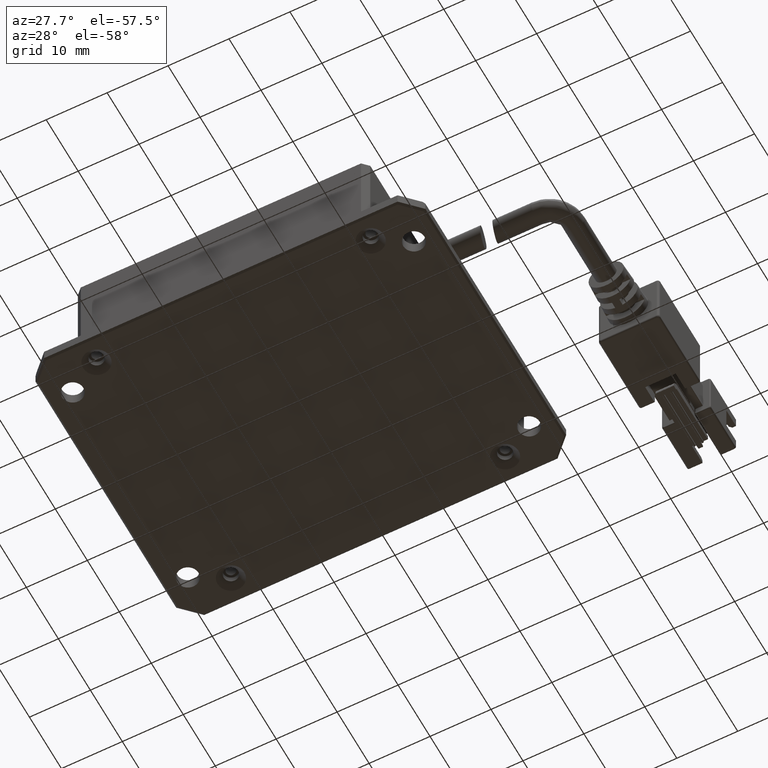
[diagram: clean part render]
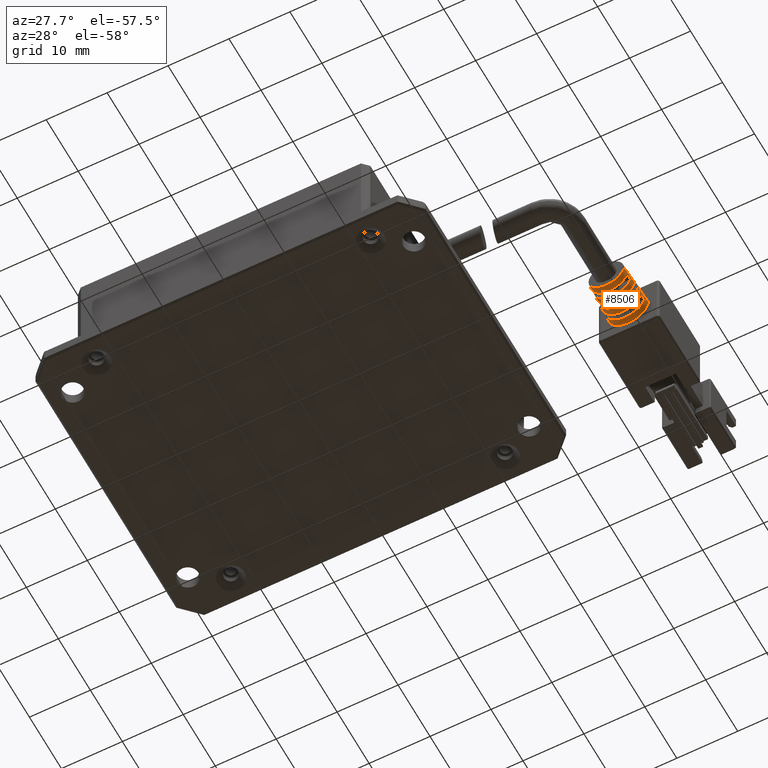
[diagram: same view with one face highlighted and labeled with its STEP entity id]
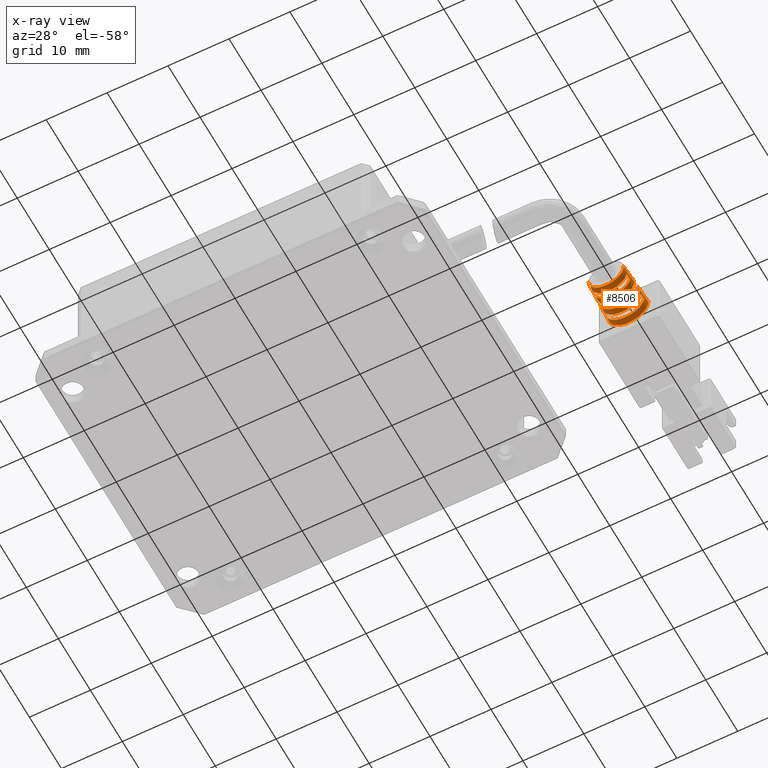
[diagram: x-ray of the same camera — body ghosted, the highlighted face saturated]
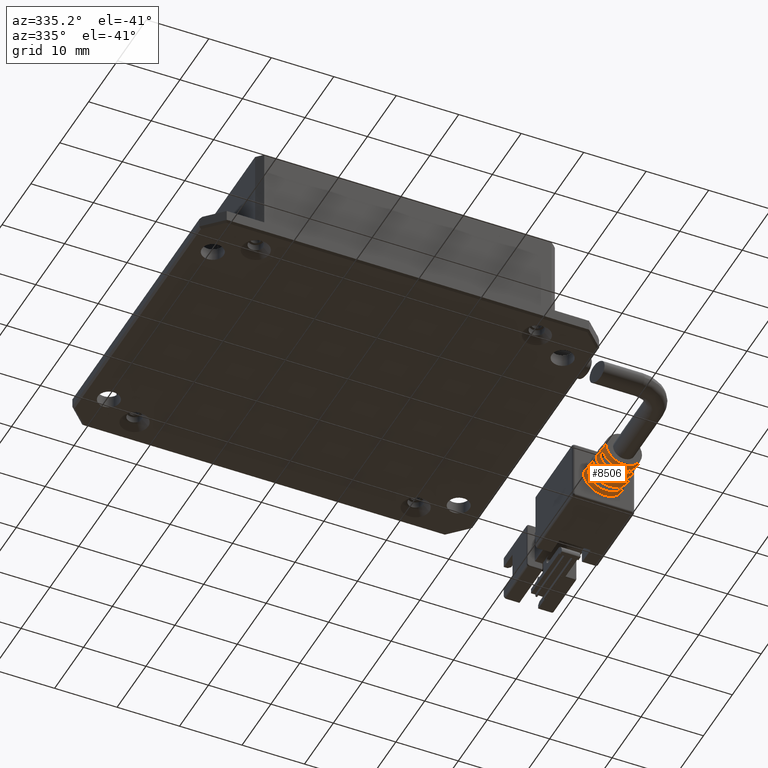
[diagram: same view with one face highlighted and labeled with its STEP entity id]
A machine part, auxiliary view. The second image highlights one B-rep face of the part: STEP entity #8506.
The next image is the same camera in x-ray: the body ghosted, the highlighted face saturated — about 0% of this face is hidden behind the body in this view.
A second angle (auxiliary view) of the same face is appended — the face is thin or edge-on in the first view.
In plain terms, the highlighted conical surface has half-angle 3 deg.
Its self-contained STEP definition (entity closure, byte-faithful):
#3 = DIRECTION ( 'NONE',  ( -0.05233595624279531500, 0.9986295347545816000, -1.094872672590910900E-017 ) ) ;
#78 = CARTESIAN_POINT ( 'NONE',  ( 47.09316533027874400, 6.290950744554031400, 4.999999999983692200 ) ) ;
#244 = CARTESIAN_POINT ( 'NONE',  ( 43.84316533029164700, 13.29095074433166000, 4.999999999983691300 ) ) ;
#272 = VERTEX_POINT ( 'NONE', #12285 ) ;
#336 = AXIS2_PLACEMENT_3D ( 'NONE', #15369, #17243, #14046 ) ;
#380 = DIRECTION ( 'NONE',  ( 3.081487911019577400E-033, -1.000000000000000000, 2.672764710092188000E-049 ) ) ;
#588 = ORIENTED_EDGE ( 'NONE', *, *, #5494, .T. ) ;
#1057 = VERTEX_POINT ( 'NONE', #8894 ) ;
#1065 = B_SPLINE_CURVE_WITH_KNOTS ( 'NONE', 3,
 ( #14375, #14639, #17567, #8112 ),
 .UNSPECIFIED., .F., .F.,
 ( 4, 4 ),
 ( 2.821323884305459600E-015, 0.001001431039903067500 ),
 .UNSPECIFIED. ) ;
#1366 = CARTESIAN_POINT ( 'NONE',  ( 43.95236988803991100, 12.29095074457085700, 4.399999999983691600 ) ) ;
#1535 = ORIENTED_EDGE ( 'NONE', *, *, #6773, .T. ) ;
#1658 = VERTEX_POINT ( 'NONE', #14954 ) ;
#1730 = VERTEX_POINT ( 'NONE', #4436 ) ;
#2007 = CARTESIAN_POINT ( 'NONE',  ( 44.18389832540035700, 7.957617054111668900, 4.399999999983692500 ) ) ;
#2046 = EDGE_CURVE ( 'NONE', #17945, #17030, #7582, .T. ) ;
#2251 = CIRCLE ( 'NONE', #8619, 3.092776662151075500 ) ;
#2396 = DIRECTION ( 'NONE',  ( -3.081487911019577400E-033, 1.000000000000000000, -2.672764710092188000E-049 ) ) ;
#2746 = VERTEX_POINT ( 'NONE', #14140 ) ;
#2994 = EDGE_CURVE ( 'NONE', #1057, #3077, #7861, .T. ) ;
#3077 = VERTEX_POINT ( 'NONE', #11560 ) ;
#3118 = DIRECTION ( 'NONE',  ( 3.081487911019577400E-033, -1.000000000000000000, 2.672764710092188000E-049 ) ) ;
#3149 = ORIENTED_EDGE ( 'NONE', *, *, #11170, .T. ) ;
#3325 = FACE_BOUND ( 'NONE', #5688, .T. ) ;
#3351 = DIRECTION ( 'NONE',  ( 0.05233595624279531500, 0.9986295347545816000, 4.539420596603585100E-018 ) ) ;
#3436 = EDGE_CURVE ( 'NONE', #11450, #272, #5925, .T. ) ;
#3441 = CARTESIAN_POINT ( 'NONE',  ( 44.00574161937815600, 11.29095074455140200, 4.399999999983692500 ) ) ;
#3946 = ORIENTED_EDGE ( 'NONE', *, *, #12117, .T. ) ;
#4018 = VERTEX_POINT ( 'NONE', #6360 ) ;
#4095 = B_SPLINE_CURVE_WITH_KNOTS ( 'NONE', 3,
 ( #13112, #6964, #18089, #13319 ),
 .UNSPECIFIED., .F., .F.,
 ( 4, 4 ),
 ( 9.466711998563855400E-016, 0.001001423258045926400 ),
 .UNSPECIFIED. ) ;
#4140 = B_SPLINE_CURVE_WITH_KNOTS ( 'NONE', 3,
 ( #1366, #15004, #5385, #19960 ),
 .UNSPECIFIED., .F., .F.,
 ( 4, 4 ),
 ( 2.341740480690032800E-015, 0.001001423258043091700 ),
 .UNSPECIFIED. ) ;
#4150 = ORIENTED_EDGE ( 'NONE', *, *, #15144, .T. ) ;
#4236 = CARTESIAN_POINT ( 'NONE',  ( 49.97631087529724400, 6.290950744554031400, 4.999999999983692200 ) ) ;
#4428 = VERTEX_POINT ( 'NONE', #10452 ) ;
#4436 = CARTESIAN_POINT ( 'NONE',  ( 47.69316533027874500, 10.29095074456608200, 1.965981627932517100 ) ) ;
#4810 = DIRECTION ( 'NONE',  ( 1.000000000000000000, 0.0000000000000000000, -8.558452326718922600E-016 ) ) ;
#4901 = CARTESIAN_POINT ( 'NONE',  ( 50.18594199242981800, 10.29095074457313100, 4.999999999983692200 ) ) ;
#4924 = ORIENTED_EDGE ( 'NONE', *, *, #19183, .T. ) ;
#5003 = B_SPLINE_CURVE_WITH_KNOTS ( 'NONE', 3,
 ( #15693, #10859, #15624, #18668 ),
 .UNSPECIFIED., .F., .F.,
 ( 4, 4 ),
 ( 1.405395367116548100E-015, 0.001001426938980521700 ),
 .UNSPECIFIED. ) ;
#5037 = AXIS2_PLACEMENT_3D ( 'NONE', #12818, #17655, #11314 ) ;
#5385 = CARTESIAN_POINT ( 'NONE',  ( 43.98794555351364700, 11.62428378490378100, 4.399999999983692500 ) ) ;
#5494 = EDGE_CURVE ( 'NONE', #1658, #14054, #1065, .T. ) ;
#5564 = CIRCLE ( 'NONE', #19725, 2.883145545018506200 ) ;
#5619 = CARTESIAN_POINT ( 'NONE',  ( 44.05279644741229800, 9.290950744539934200, 4.999999999983691300 ) ) ;
#5688 = EDGE_LOOP ( 'NONE', ( #588, #19616, #6796, #1535 ) ) ;
#5761 = CARTESIAN_POINT ( 'NONE',  ( 50.18058904117948100, 11.29095074455425900, 4.399999999983692500 ) ) ;
#5925 = CIRCLE ( 'NONE', #7816, 3.249999999999010600 ) ;
#6146 = CARTESIAN_POINT ( 'NONE',  ( 47.09316533027874400, 13.29095074433166000, 4.999999999983692200 ) ) ;
#6354 = CARTESIAN_POINT ( 'NONE',  ( 43.84316533029164700, 13.29095074433166000, 4.999999999983691300 ) ) ;
#6360 = CARTESIAN_POINT ( 'NONE',  ( 44.21001978526023600, 6.290950744554031400, 4.999999999983691300 ) ) ;
#6502 = CARTESIAN_POINT ( 'NONE',  ( 50.34316533026584000, 13.29095074433166000, 4.999999999983692200 ) ) ;
#6773 = EDGE_CURVE ( 'NONE', #3077, #1658, #13069, .T. ) ;
#6796 = ORIENTED_EDGE ( 'NONE', *, *, #2994, .T. ) ;
#6854 = CARTESIAN_POINT ( 'NONE',  ( 43.84316533027973200, 13.29095074455903400, 4.999999999983691300 ) ) ;
#6889 = DIRECTION ( 'NONE',  ( 1.000000000000000000, 0.0000000000000000000, 0.0000000000000000000 ) ) ;
#6890 = CARTESIAN_POINT ( 'NONE',  ( 44.21958336349486300, 7.290950744581584400, 4.399999999983693400 ) ) ;
#6909 = ORIENTED_EDGE ( 'NONE', *, *, #13816, .T. ) ;
#6964 = CARTESIAN_POINT ( 'NONE',  ( 50.19838510704384000, 11.62428378490377600, 4.399999999983692500 ) ) ;
#7558 = FACE_BOUND ( 'NONE', #13703, .T. ) ;
#7582 = LINE ( 'NONE', #6502, #16719 ) ;
#7614 = CARTESIAN_POINT ( 'NONE',  ( 47.09316533027874400, 9.290950744539934200, 4.999999999983692200 ) ) ;
#7643 = CARTESIAN_POINT ( 'NONE',  ( 46.49316533027874200, 9.624283752028095100, 2.001602699982295800 ) ) ;
#7816 = AXIS2_PLACEMENT_3D ( 'NONE', #18815, #3118, #20425 ) ;
#7861 = B_SPLINE_CURVE_WITH_KNOTS ( 'NONE', 3,
 ( #16242, #2007, #14553, #6890 ),
 .UNSPECIFIED., .F., .F.,
 ( 4, 4 ),
 ( 4.691970052180783900E-016, 0.001001431039896517200 ),
 .UNSPECIFIED. ) ;
#8028 = LINE ( 'NONE', #6354, #9758 ) ;
#8112 = CARTESIAN_POINT ( 'NONE',  ( 50.02026484285691100, 8.290950744562678700, 4.399999999983693400 ) ) ;
#8206 = ORIENTED_EDGE ( 'NONE', *, *, #12916, .T. ) ;
#8311 = CARTESIAN_POINT ( 'NONE',  ( 46.49316533027874200, 9.290950744549483900, 2.019422380812268900 ) ) ;
#8407 = EDGE_CURVE ( 'NONE', #17945, #4018, #5564, .T. ) ;
#8478 = ORIENTED_EDGE ( 'NONE', *, *, #16414, .T. ) ;
#8506 = ADVANCED_FACE ( 'NONE', ( #7558, #3325, #9265 ), #8786, .T. ) ;
#8619 = AXIS2_PLACEMENT_3D ( 'NONE', #12104, #16873, #18457 ) ;
#8644 = CIRCLE ( 'NONE', #17773, 3.145184441432725900 ) ;
#8765 = EDGE_CURVE ( 'NONE', #4428, #2746, #11962, .T. ) ;
#8786 = CONICAL_SURFACE ( 'NONE', #12970, 3.249999999987096500, 0.05235987755968116900 ) ;
#8820 = EDGE_CURVE ( 'NONE', #17308, #11122, #18371, .T. ) ;
#8894 = CARTESIAN_POINT ( 'NONE',  ( 44.16606581770064800, 8.290950744561307300, 4.399999999983692500 ) ) ;
#9040 = VERTEX_POINT ( 'NONE', #5619 ) ;
#9208 = CARTESIAN_POINT ( 'NONE',  ( 46.49316533027874200, 9.957617091215672300, 1.983789223055079800 ) ) ;
#9265 = FACE_OUTER_BOUND ( 'NONE', #13917, .T. ) ;
#9308 = AXIS2_PLACEMENT_3D ( 'NONE', #7614, #20254, #15753 ) ;
#9758 = VECTOR ( 'NONE', #3, 1000.000000000000200 ) ;
#9773 = DIRECTION ( 'NONE',  ( 1.000000000000000000, 0.0000000000000000000, 0.0000000000000000000 ) ) ;
#9803 = DIRECTION ( 'NONE',  ( 1.000000000000000000, 0.0000000000000000000, -8.273235679558057500E-016 ) ) ;
#9862 = ORIENTED_EDGE ( 'NONE', *, *, #11970, .T. ) ;
#9979 = EDGE_CURVE ( 'NONE', #13108, #11144, #8644, .T. ) ;
#10202 = DIRECTION ( 'NONE',  ( 1.000000000000000000, 0.0000000000000000000, 0.0000000000000000000 ) ) ;
#10282 = CARTESIAN_POINT ( 'NONE',  ( 47.09316533027874400, 10.29095074457313100, 4.999999999983692200 ) ) ;
#10452 = CARTESIAN_POINT ( 'NONE',  ( 50.23396077251794600, 12.29095074457793800, 4.399999999983692500 ) ) ;
#10657 = CARTESIAN_POINT ( 'NONE',  ( 50.13353421314518200, 9.290950744539934200, 4.999999999983692200 ) ) ;
#10729 = EDGE_CURVE ( 'NONE', #14053, #272, #16988, .T. ) ;
#10784 = AXIS2_PLACEMENT_3D ( 'NONE', #16240, #19407, #6889 ) ;
#10802 = CIRCLE ( 'NONE', #9308, 3.040368882866441200 ) ;
#10859 = CARTESIAN_POINT ( 'NONE',  ( 47.69316533027874500, 9.957617091215672300, 1.983789223055079800 ) ) ;
#11005 = ORIENTED_EDGE ( 'NONE', *, *, #8765, .T. ) ;
#11122 = VERTEX_POINT ( 'NONE', #12129 ) ;
#11144 = VERTEX_POINT ( 'NONE', #5761 ) ;
#11161 = DIRECTION ( 'NONE',  ( 1.000000000000000000, 0.0000000000000000000, 0.0000000000000000000 ) ) ;
#11170 = EDGE_CURVE ( 'NONE', #14204, #17308, #17860, .T. ) ;
#11291 = CARTESIAN_POINT ( 'NONE',  ( 50.02026484285691100, 8.290950744562678700, 4.399999999983693400 ) ) ;
#11314 = DIRECTION ( 'NONE',  ( 1.000000000000000000, 0.0000000000000000000, 0.0000000000000000000 ) ) ;
#11450 = VERTEX_POINT ( 'NONE', #6854 ) ;
#11560 = CARTESIAN_POINT ( 'NONE',  ( 44.21958336349486300, 7.290950744581584400, 4.399999999983693400 ) ) ;
#11600 = CARTESIAN_POINT ( 'NONE',  ( 47.09316533027874400, 11.29095074454948400, 4.999999999983692200 ) ) ;
#11962 = CIRCLE ( 'NONE', #5037, 3.197592220717360200 ) ;
#11970 = EDGE_CURVE ( 'NONE', #9040, #14204, #11984, .T. ) ;
#11984 = CIRCLE ( 'NONE', #17693, 3.040368882866441200 ) ;
#12104 = CARTESIAN_POINT ( 'NONE',  ( 47.09316533027874400, 10.29095074457313100, 4.999999999983692200 ) ) ;
#12117 = EDGE_CURVE ( 'NONE', #11122, #11450, #16916, .T. ) ;
#12129 = CARTESIAN_POINT ( 'NONE',  ( 44.00038866812766300, 10.29095074457313100, 4.999999999983691300 ) ) ;
#12285 = CARTESIAN_POINT ( 'NONE',  ( 50.34316533027774900, 13.29095074455903400, 4.999999999983692200 ) ) ;
#12630 = ORIENTED_EDGE ( 'NONE', *, *, #10729, .F. ) ;
#12818 = CARTESIAN_POINT ( 'NONE',  ( 47.09316533027874400, 12.29095074458268000, 4.999999999983692200 ) ) ;
#12916 = EDGE_CURVE ( 'NONE', #1730, #13375, #5003, .T. ) ;
#12970 = AXIS2_PLACEMENT_3D ( 'NONE', #6146, #14512, #9773 ) ;
#13069 = CIRCLE ( 'NONE', #336, 2.935553324303140400 ) ;
#13108 = VERTEX_POINT ( 'NONE', #3441 ) ;
#13112 = CARTESIAN_POINT ( 'NONE',  ( 50.18058904117948100, 11.29095074455425900, 4.399999999983692500 ) ) ;
#13319 = CARTESIAN_POINT ( 'NONE',  ( 50.23396077251794600, 12.29095074457793800, 4.399999999983692500 ) ) ;
#13375 = VERTEX_POINT ( 'NONE', #20171 ) ;
#13703 = EDGE_LOOP ( 'NONE', ( #8478, #11005, #16089, #17933 ) ) ;
#13816 = EDGE_CURVE ( 'NONE', #14053, #1730, #2251, .T. ) ;
#13855 = CIRCLE ( 'NONE', #10784, 2.987961103584790800 ) ;
#13891 = CARTESIAN_POINT ( 'NONE',  ( 46.49316533027874200, 10.29095074457030800, 1.965981627932291500 ) ) ;
#13908 = ORIENTED_EDGE ( 'NONE', *, *, #2046, .F. ) ;
#13917 = EDGE_LOOP ( 'NONE', ( #14034, #4924, #9862, #3149, #18890, #3946, #14708, #12630, #6909, #8206, #4150, #13908 ) ) ;
#14034 = ORIENTED_EDGE ( 'NONE', *, *, #8407, .T. ) ;
#14046 = DIRECTION ( 'NONE',  ( 1.000000000000000000, 0.0000000000000000000, 0.0000000000000000000 ) ) ;
#14053 = VERTEX_POINT ( 'NONE', #4901 ) ;
#14054 = VERTEX_POINT ( 'NONE', #11291 ) ;
#14055 = CARTESIAN_POINT ( 'NONE',  ( 47.09316533027874400, 9.290950744539934200, 4.999999999983692200 ) ) ;
#14140 = CARTESIAN_POINT ( 'NONE',  ( 43.95236988803991100, 12.29095074457085700, 4.399999999983691600 ) ) ;
#14204 = VERTEX_POINT ( 'NONE', #8311 ) ;
#14274 = DIRECTION ( 'NONE',  ( 3.081487911019577400E-033, -1.000000000000000000, 2.672764710092188000E-049 ) ) ;
#14375 = CARTESIAN_POINT ( 'NONE',  ( 49.96674729706215600, 7.290950744573130700, 4.399999999983693400 ) ) ;
#14422 = CARTESIAN_POINT ( 'NONE',  ( 46.49316533027874200, 10.29095074457030800, 1.965981627932291500 ) ) ;
#14478 = DIRECTION ( 'NONE',  ( -0.05233595624279531500, 0.9986295347545816000, -1.094872672590910900E-017 ) ) ;
#14512 = DIRECTION ( 'NONE',  ( -3.081487911019577400E-033, 1.000000000000000000, -2.672764710092188000E-049 ) ) ;
#14553 = CARTESIAN_POINT ( 'NONE',  ( 44.20173738305315000, 7.624283713995428300, 4.399999999983693400 ) ) ;
#14639 = CARTESIAN_POINT ( 'NONE',  ( 49.98459327750433100, 7.624283713995430900, 4.399999999983693400 ) ) ;
#14708 = ORIENTED_EDGE ( 'NONE', *, *, #3436, .T. ) ;
#14929 = VECTOR ( 'NONE', #14478, 1000.000000000000200 ) ;
#14954 = CARTESIAN_POINT ( 'NONE',  ( 49.96674729706215600, 7.290950744573130700, 4.399999999983693400 ) ) ;
#15004 = CARTESIAN_POINT ( 'NONE',  ( 43.97015506965748000, 11.95761712331011500, 4.399999999983691600 ) ) ;
#15144 = EDGE_CURVE ( 'NONE', #13375, #17030, #10802, .T. ) ;
#15369 = CARTESIAN_POINT ( 'NONE',  ( 47.09316533027874400, 7.290950744587227900, 4.999999999983692200 ) ) ;
#15624 = CARTESIAN_POINT ( 'NONE',  ( 47.69316533027874500, 9.624283752028095100, 2.001602699982296200 ) ) ;
#15693 = CARTESIAN_POINT ( 'NONE',  ( 47.69316533027874500, 10.29095074456608200, 1.965981627932517100 ) ) ;
#15753 = DIRECTION ( 'NONE',  ( 1.000000000000000000, 0.0000000000000000000, 8.558452326718922600E-016 ) ) ;
#16089 = ORIENTED_EDGE ( 'NONE', *, *, #19595, .T. ) ;
#16240 = CARTESIAN_POINT ( 'NONE',  ( 47.09316533027874400, 8.290950744563581100, 4.999999999983692200 ) ) ;
#16242 = CARTESIAN_POINT ( 'NONE',  ( 44.16606581770064800, 8.290950744561307300, 4.399999999983692500 ) ) ;
#16259 = DIRECTION ( 'NONE',  ( 0.05233595624279531500, 0.9986295347545816000, 4.539420596603585100E-018 ) ) ;
#16414 = EDGE_CURVE ( 'NONE', #11144, #4428, #4095, .T. ) ;
#16495 = VECTOR ( 'NONE', #3351, 1000.000000000000200 ) ;
#16719 = VECTOR ( 'NONE', #16259, 1000.000000000000200 ) ;
#16873 = DIRECTION ( 'NONE',  ( -3.081487911019577400E-033, 1.000000000000000000, -2.672764710092188000E-049 ) ) ;
#16916 = LINE ( 'NONE', #244, #14929 ) ;
#16988 = LINE ( 'NONE', #19043, #16495 ) ;
#17030 = VERTEX_POINT ( 'NONE', #10657 ) ;
#17243 = DIRECTION ( 'NONE',  ( 3.081487911019577400E-033, -1.000000000000000000, 2.672764710092188000E-049 ) ) ;
#17308 = VERTEX_POINT ( 'NONE', #14422 ) ;
#17567 = CARTESIAN_POINT ( 'NONE',  ( 50.00243233515712400, 7.957617054111669800, 4.399999999983693400 ) ) ;
#17655 = DIRECTION ( 'NONE',  ( -3.081487911019577400E-033, 1.000000000000000000, -2.672764710092188000E-049 ) ) ;
#17693 = AXIS2_PLACEMENT_3D ( 'NONE', #14055, #14274, #4810 ) ;
#17773 = AXIS2_PLACEMENT_3D ( 'NONE', #11600, #380, #9803 ) ;
#17860 = B_SPLINE_CURVE_WITH_KNOTS ( 'NONE', 3,
 ( #18688, #7643, #9208, #13891 ),
 .UNSPECIFIED., .F., .F.,
 ( 4, 4 ),
 ( 1.949140732119931800E-015, 0.001001426938979540300 ),
 .UNSPECIFIED. ) ;
#17933 = ORIENTED_EDGE ( 'NONE', *, *, #9979, .T. ) ;
#17945 = VERTEX_POINT ( 'NONE', #4236 ) ;
#18089 = CARTESIAN_POINT ( 'NONE',  ( 50.21617559090000800, 11.95761712331011300, 4.399999999983692500 ) ) ;
#18147 = AXIS2_PLACEMENT_3D ( 'NONE', #10282, #2396, #10202 ) ;
#18371 = CIRCLE ( 'NONE', #18147, 3.092776662151075500 ) ;
#18457 = DIRECTION ( 'NONE',  ( 1.000000000000000000, 0.0000000000000000000, 0.0000000000000000000 ) ) ;
#18668 = CARTESIAN_POINT ( 'NONE',  ( 47.69316533027874500, 9.290950744543735600, 2.019422380812576200 ) ) ;
#18688 = CARTESIAN_POINT ( 'NONE',  ( 46.49316533027874200, 9.290950744549483900, 2.019422380812268900 ) ) ;
#18815 = CARTESIAN_POINT ( 'NONE',  ( 47.09316533027874400, 13.29095074455903400, 4.999999999983692200 ) ) ;
#18877 = DIRECTION ( 'NONE',  ( -3.081487911019577400E-033, 1.000000000000000000, -2.672764710092188000E-049 ) ) ;
#18890 = ORIENTED_EDGE ( 'NONE', *, *, #8820, .T. ) ;
#19043 = CARTESIAN_POINT ( 'NONE',  ( 50.34316533026584000, 13.29095074433166000, 4.999999999983692200 ) ) ;
#19183 = EDGE_CURVE ( 'NONE', #4018, #9040, #8028, .T. ) ;
#19407 = DIRECTION ( 'NONE',  ( -3.081487911019577400E-033, 1.000000000000000000, -2.672764710092188000E-049 ) ) ;
#19595 = EDGE_CURVE ( 'NONE', #2746, #13108, #4140, .T. ) ;
#19616 = ORIENTED_EDGE ( 'NONE', *, *, #19792, .T. ) ;
#19725 = AXIS2_PLACEMENT_3D ( 'NONE', #78, #18877, #11161 ) ;
#19792 = EDGE_CURVE ( 'NONE', #14054, #1057, #13855, .T. ) ;
#19960 = CARTESIAN_POINT ( 'NONE',  ( 44.00574161937815600, 11.29095074455140200, 4.399999999983692500 ) ) ;
#20171 = CARTESIAN_POINT ( 'NONE',  ( 47.69316533027874500, 9.290950744543735600, 2.019422380812576200 ) ) ;
#20254 = DIRECTION ( 'NONE',  ( 3.081487911019577400E-033, -1.000000000000000000, 2.672764710092188000E-049 ) ) ;
#20425 = DIRECTION ( 'NONE',  ( 1.000000000000000000, 0.0000000000000000000, 0.0000000000000000000 ) ) ;